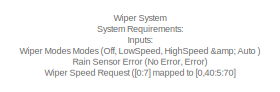
[diagram: root canvas - part 1/2, top left region]
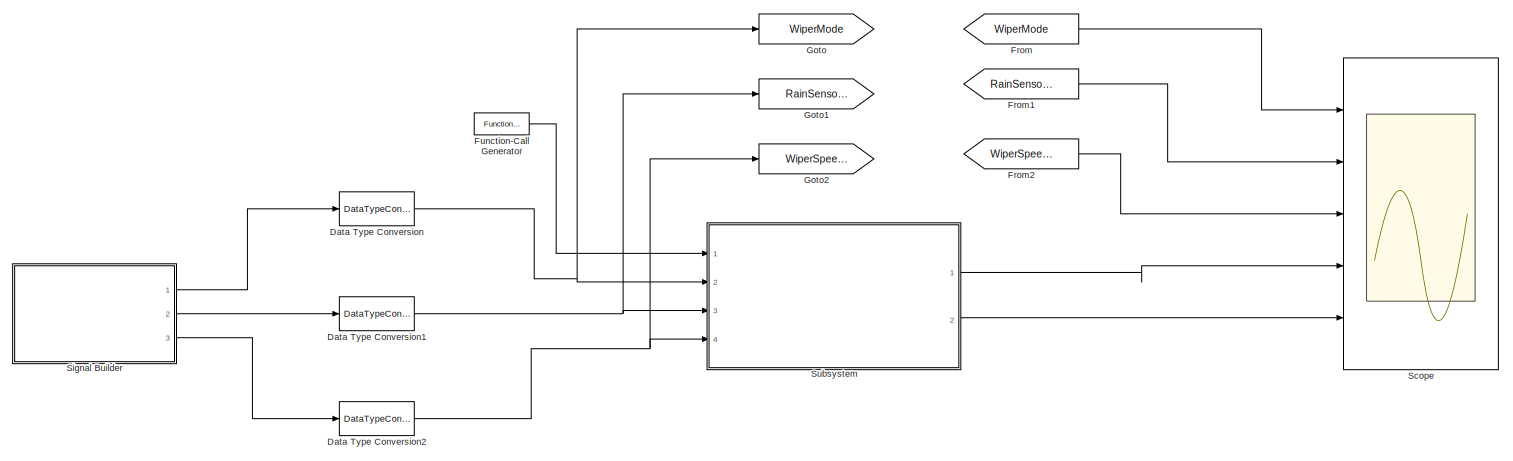
[diagram: root canvas - part 2/2, full width, bottom band]
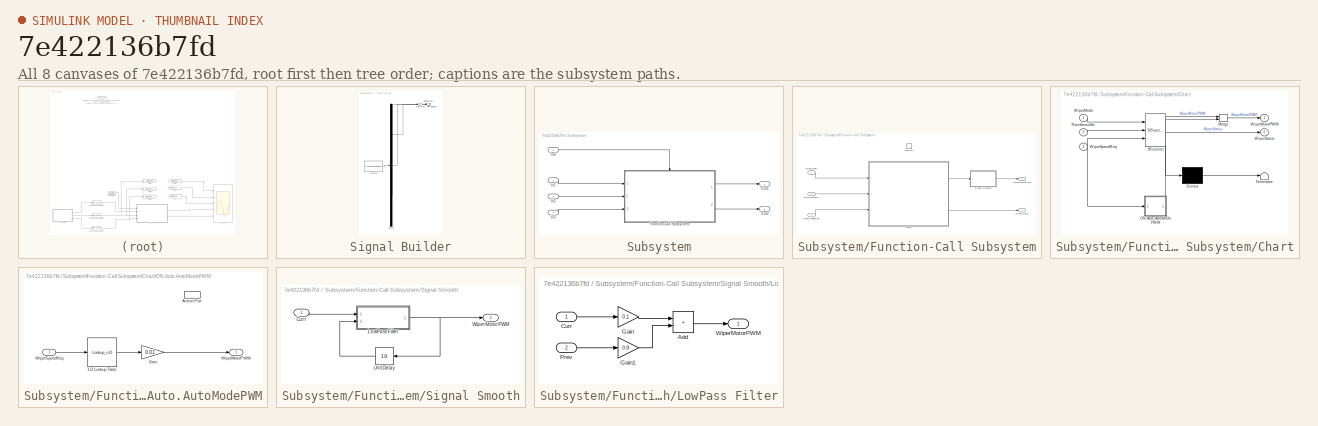
[diagram: thumbnail index - all 8 canvases of the model, root first then tree order]
MODEL slx_7e422136b7fd
KIND model
CONFIG AbsTol = auto
CONFIG EnableMultiTasking = off
CONFIG FixedStep = 0.01
CONFIG MaxStep = auto
CONFIG MinStep = auto
CONFIG RelTol = 1e-3
CONFIG SampleTimeConstraint = Unconstrained
CONFIG SolverName = FixedStepDiscrete
CONFIG StartTime = 0.0
CONFIG StopTime = 20
WORKSPACE source: mxarray member
WORKSPACE x_data: Simulink.Parameter (value not decoded)
WORKSPACE y_data: Simulink.Parameter (value not decoded)
BLOCK [DataTypeConversion] Data Type Conversion
  OutDataTypeStr = uint8
  OutMax = 3
  OutMin = 0
  RndMeth = Floor
  SaturateOnIntegerOverflow = off
BLOCK [DataTypeConversion] Data Type Conversion1
  OutDataTypeStr = boolean
  OutMax = 1
  OutMin = 0
  RndMeth = Floor
  SaturateOnIntegerOverflow = off
BLOCK [DataTypeConversion] Data Type Conversion2
  OutDataTypeStr = uint8
  OutMax = 7
  OutMin = 0
  RndMeth = Floor
  SaturateOnIntegerOverflow = off
BLOCK [From] From
  GotoTag = WiperMode
BLOCK [From] From1
  GotoTag = RainSensorErr
BLOCK [From] From2
  GotoTag = WiperSpeedReq
BLOCK [Reference] Function-Call Generator  REF=simulink/Ports &
Subsystems/Function-Call
Generator
  Ports = [0, 1]
  SourceBlock = simulink/Ports &\nSubsystems/Function-Call\nGenerator
  SourceProductBaseCode = SL
  SourceType = Function-Call Generator
BLOCK [Goto] Goto
  GotoTag = WiperMode
BLOCK [Goto] Goto1
  GotoTag = RainSensorErr
BLOCK [Goto] Goto2
  GotoTag = WiperSpeedReq
BLOCK [Scope] Scope
  Floating = off
  NumInputPorts = 5
  Ports = [5]
  ScopeSpecificationString = Simulink.scopes.TimeScopeBlockCfg('CurrentConfiguration', extmgr.ConfigurationSet(extmgr.Configuration('Core','General UI',true),extmgr.Configuration('Core','Source UI',true),extmgr.Configuration('Sources','WiredSimulink',true),extmgr.Configuration('Visuals','Time Domain',true,'SerializedDisplays',{struct('MinYLimReal','-0.375','MaxYLimReal','3.375','YLabelReal','','MinYLimMag','0.00000','MaxYLimM...<+4870ch>
BLOCK [SubSystem] Signal Builder
  ClipboardFcn = sigbuilder_block('clipboard');
  CloseFcn = sigbuilder_block('close');
  ContinueFcn = sigbuilder_block('continue');
  CopyFcn = sigbuilder_block('copy');
  DeleteFcn = sigbuilder_block('delete');
  LoadFcn = sigbuilder_block('load');
  MaskHideContents = on
  ModelCloseFcn = sigbuilder_block('modelClose');
  NameChangeFcn = sigbuilder_block('namechange');
  OpenFcn = sigbuilder_block('open',[428.4 165 601.8 400.2 ]);
  PauseFcn = sigbuilder_block('pause');
  Ports = [0, 3]
  PreSaveFcn = sigbuilder_block('preSave');
  RequestExecContextInheritance = off
  StartFcn = sigbuilder_block('start');
  StopFcn = sigbuilder_block('stop');
  Tag = STV Subsys
BLOCK [Demux] Signal Builder/Demux
  DisplayOption = none
  Outputs = 3
  Ports = [1, 3]
  Tag = STV Demux
BLOCK [FromWorkspace] Signal Builder/FromWs
  Tag = STV FromWs
  VariableName = tuvar
BLOCK [Outport] Signal Builder/RainSnsrErr
  Port = 2
  Tag = STV Outport
BLOCK [Outport] Signal Builder/WiprMod
  Tag = STV Outport
BLOCK [Outport] Signal Builder/WiprSpdReq
  Port = 3
  Tag = STV Outport
BLOCK [SubSystem] Subsystem
  Ports = [4, 2]
  RequestExecContextInheritance = off
BLOCK [SubSystem] Subsystem/Function-Call Subsystem
  Ports = [3, 2, 0, 1]
  RequestExecContextInheritance = off
  TreatAsAtomicUnit = on
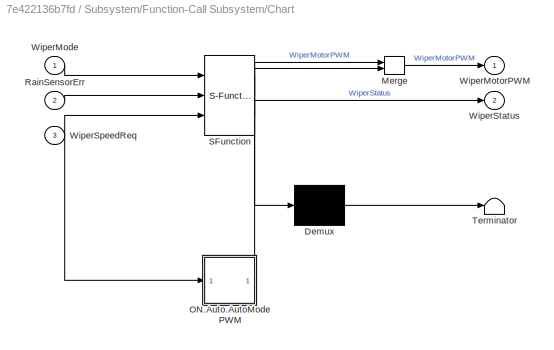
BLOCK [SubSystem] Subsystem/Function-Call Subsystem/Chart
  ErrorFcn = Stateflow.Translate.translate
  PermitHierarchicalResolution = ExplicitOnly
  Ports = [3, 2]
  RequestExecContextInheritance = off
  SFBlockType = Chart
  TreatAsAtomicUnit = on
BLOCK [Demux] Subsystem/Function-Call Subsystem/Chart/ Demux 
  Outputs = 1
  Ports = [1, 1]
BLOCK [Merge] Subsystem/Function-Call Subsystem/Chart/ Merge 
  Ports = [2, 1]
BLOCK [S-Function] Subsystem/Function-Call Subsystem/Chart/ SFunction 
  EnableBusSupport = on
  FunctionName = sf_sfun
  PortCounts = [3 3]
  Ports = [3, 3]
  SFcnIsStateOwnerBlock = off
  SFunctionDeploymentMode = off
  Tag = Stateflow S-Function 3
BLOCK [Terminator] Subsystem/Function-Call Subsystem/Chart/ Terminator 
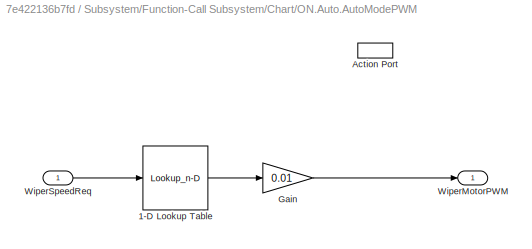
BLOCK [SubSystem] Subsystem/Function-Call Subsystem/Chart/ON.Auto.AutoModePWM
  Ports = [1, 1, 0, 0, 0, 0, 0, 1]
  PreDeleteFcn = Stateflow.SLINSF.SimulinkMan.removePreDeleteFcn
  RequestExecContextInheritance = off
  UndoDeleteFcn = Stateflow.SLINSF.SimulinkMan.restorePreDeleteFcn
BLOCK [Lookup_n-D] Subsystem/Function-Call Subsystem/Chart/ON.Auto.AutoModePWM/1-D Lookup Table
  BreakpointsForDimension1 = [0;1;2;3;4;5;6;7]
  ExtrapMethod = Clip
  InputPortMap = u0
  InternalRulePriority = Speed
  NumberOfTableDimensions = 1
  OutDataTypeStr = single
  Ports = [1, 1]
  RndMeth = Simplest
  Table = [0;40;45;50;55;60;65;70]
  TableDataTypeStr = single
BLOCK [ActionPort] Subsystem/Function-Call Subsystem/Chart/ON.Auto.AutoModePWM/Action Port
  CopyFcn = Stateflow.SLINSF.SimulinkMan.removeBlockPreDeleteFcn
  PreDeleteFcn = Stateflow.SLINSF.SimulinkMan.unsafePredeleteFcn
BLOCK [Gain] Subsystem/Function-Call Subsystem/Chart/ON.Auto.AutoModePWM/Gain
  Gain = 0.01
  OutDataTypeStr = Inherit: Inherit via back propagation
BLOCK [Outport] Subsystem/Function-Call Subsystem/Chart/ON.Auto.AutoModePWM/WiperMotorPWM
BLOCK [Inport] Subsystem/Function-Call Subsystem/Chart/ON.Auto.AutoModePWM/WiperSpeedReq
  OutDataTypeStr = uint8
BLOCK [Inport] Subsystem/Function-Call Subsystem/Chart/RainSensorErr
  Port = 2
BLOCK [Inport] Subsystem/Function-Call Subsystem/Chart/WiperMode
BLOCK [Outport] Subsystem/Function-Call Subsystem/Chart/WiperMotorPWM
BLOCK [Inport] Subsystem/Function-Call Subsystem/Chart/WiperSpeedReq
  Port = 3
BLOCK [Outport] Subsystem/Function-Call Subsystem/Chart/WiperStatus
  Port = 2
BLOCK [Inport] Subsystem/Function-Call Subsystem/RainSensorErr
  OutDataTypeStr = boolean
  OutMax = 1
  OutMin = 0
  Port = 2
BLOCK [SubSystem] Subsystem/Function-Call Subsystem/Signal Smooth
  Ports = [1, 1]
  RequestExecContextInheritance = off
BLOCK [Inport] Subsystem/Function-Call Subsystem/Signal Smooth/Curr
BLOCK [SubSystem] Subsystem/Function-Call Subsystem/Signal Smooth/LowPass Filter
  Ports = [2, 1]
  RequestExecContextInheritance = off
BLOCK [Sum] Subsystem/Function-Call Subsystem/Signal Smooth/LowPass Filter/Add
  IconShape = rectangular
  Ports = [2, 1]
BLOCK [Inport] Subsystem/Function-Call Subsystem/Signal Smooth/LowPass Filter/Curr
BLOCK [Gain] Subsystem/Function-Call Subsystem/Signal Smooth/LowPass Filter/Gain
  Gain = 0.1
BLOCK [Gain] Subsystem/Function-Call Subsystem/Signal Smooth/LowPass Filter/Gain1
  Gain = 0.9
BLOCK [Inport] Subsystem/Function-Call Subsystem/Signal Smooth/LowPass Filter/Prev
  Port = 2
BLOCK [Outport] Subsystem/Function-Call Subsystem/Signal Smooth/LowPass Filter/WiperMotorPWM
BLOCK [UnitDelay] Subsystem/Function-Call Subsystem/Signal Smooth/Unit Delay
  HasFrameUpgradeWarning = on
  NameLocation = top
  SampleTime = -1
BLOCK [Outport] Subsystem/Function-Call Subsystem/Signal Smooth/WiperMotorPWM
BLOCK [Inport] Subsystem/Function-Call Subsystem/WiperMode
  OutDataTypeStr = uint8
  OutMax = 3
  OutMin = 0
BLOCK [Outport] Subsystem/Function-Call Subsystem/WiperMotorPWM
  OutDataTypeStr = single
  OutMax = 1
  OutMin = 0
BLOCK [Inport] Subsystem/Function-Call Subsystem/WiperSpeedReq
  OutDataTypeStr = uint8
  OutMax = 7
  OutMin = 0
  Port = 3
BLOCK [Outport] Subsystem/Function-Call Subsystem/WiperStatus
  OutDataTypeStr = boolean
  OutMax = 1
  OutMin = 0
  Port = 2
BLOCK [TriggerPort] Subsystem/Function-Call Subsystem/function
  Ports = []
  StatesWhenEnabling = held
  TriggerType = function-call
  VariantControl = (inherit)
BLOCK [Inport] Subsystem/In1
  OutMax = 3
  OutMin = 0
  Port = 2
BLOCK [Inport] Subsystem/In2
  OutMax = 1
  OutMin = 0
  Port = 3
BLOCK [Inport] Subsystem/In3
  OutMax = 7
  OutMin = 0
  Port = 4
BLOCK [Inport] Subsystem/In4
BLOCK [Outport] Subsystem/Out1
  OutDataTypeStr = single
  OutMax = 1
  OutMin = 0
BLOCK [Outport] Subsystem/Out2
  OutDataTypeStr = boolean
  OutMax = 1
  OutMin = 0
  Port = 2
ANNOTATION (root): Wiper System System Requirements: Inputs: Wiper Modes Modes (Off, LowSpeed, HighSpeed & Auto ) Rain Sensor Error (No Error, Error) Wiper Speed Request ([0:7] mapped to [0,40:5:70] Output: Wiper Motor PWM Wiper Status System Behavior: - Component activates every 1 ms - If Wiper Mode is set to Low speed, Motor PWM is 40% - If Wiper Mode is set to High speed, Motor PWM is 70% - If Wiper Mode is set t...<+219ch>
NET Data Type Conversion1:1 -> Goto1:1, Subsystem:3
NET Data Type Conversion2:1 -> Goto2:1, Subsystem:4
NET Data Type Conversion:1 -> Goto:1, Subsystem:2
LINE From1:1 -> Scope:2
LINE From2:1 -> Scope:3
LINE From:1 -> Scope:1
LINE Function-Call Generator:1 -> Subsystem:1
LINE Signal Builder:1 -> Data Type Conversion:1
LINE Signal Builder:2 -> Data Type Conversion1:1
LINE Signal Builder:3 -> Data Type Conversion2:1
LINE Subsystem/Function-Call Subsystem/Chart:1 -> Subsystem/Function-Call Subsystem/Signal Smooth:1
LINE Subsystem/Function-Call Subsystem/Chart:2 -> Subsystem/Function-Call Subsystem/WiperStatus:1
LINE Subsystem/Function-Call Subsystem/RainSensorErr:1 -> Subsystem/Function-Call Subsystem/Chart:2
LINE Subsystem/Function-Call Subsystem/Signal Smooth/Curr:1 -> Subsystem/Function-Call Subsystem/Signal Smooth/LowPass Filter:1
LINE Subsystem/Function-Call Subsystem/Signal Smooth/LowPass Filter/Add:1 -> Subsystem/Function-Call Subsystem/Signal Smooth/LowPass Filter/WiperMotorPWM:1
LINE Subsystem/Function-Call Subsystem/Signal Smooth/LowPass Filter/Curr:1 -> Subsystem/Function-Call Subsystem/Signal Smooth/LowPass Filter/Gain:1
LINE Subsystem/Function-Call Subsystem/Signal Smooth/LowPass Filter/Gain1:1 -> Subsystem/Function-Call Subsystem/Signal Smooth/LowPass Filter/Add:2
LINE Subsystem/Function-Call Subsystem/Signal Smooth/LowPass Filter/Gain:1 -> Subsystem/Function-Call Subsystem/Signal Smooth/LowPass Filter/Add:1
LINE Subsystem/Function-Call Subsystem/Signal Smooth/LowPass Filter/Prev:1 -> Subsystem/Function-Call Subsystem/Signal Smooth/LowPass Filter/Gain1:1
NET Subsystem/Function-Call Subsystem/Signal Smooth/LowPass Filter:1 -> Subsystem/Function-Call Subsystem/Signal Smooth/Unit Delay:1, Subsystem/Function-Call Subsystem/Signal Smooth/WiperMotorPWM:1
LINE Subsystem/Function-Call Subsystem/Signal Smooth/Unit Delay:1 -> Subsystem/Function-Call Subsystem/Signal Smooth/LowPass Filter:2
LINE Subsystem/Function-Call Subsystem/Signal Smooth:1 -> Subsystem/Function-Call Subsystem/WiperMotorPWM:1
LINE Subsystem/Function-Call Subsystem/WiperMode:1 -> Subsystem/Function-Call Subsystem/Chart:1
LINE Subsystem/Function-Call Subsystem/WiperSpeedReq:1 -> Subsystem/Function-Call Subsystem/Chart:3
LINE Subsystem/Function-Call Subsystem:1 -> Subsystem/Out1:1
LINE Subsystem/Function-Call Subsystem:2 -> Subsystem/Out2:1
LINE Subsystem/In1:1 -> Subsystem/Function-Call Subsystem:1
LINE Subsystem/In2:1 -> Subsystem/Function-Call Subsystem:2
LINE Subsystem/In3:1 -> Subsystem/Function-Call Subsystem:3
LINE Subsystem/In4:1 -> Subsystem/Function-Call Subsystem:trigger
LINE Subsystem:1 -> Scope:4
LINE Subsystem:2 -> Scope:5
note: NET lines group one-source signal fan-out (src -> all destinations, sorted); 1:1 wires keep LINE
CHART Subsystem/Function-Call
Subsystem/Chart states=6 transitions=16
  STATE_LABEL 'ON\n'
  STATE_LABEL 'Auto\nduring:\nWiperStatus = true;'
  STATE_LABEL 'AutoModePWM'
  STATE_LABEL 'LoSpeed\nentry:\nWiperStatus = true;\nWiperMotorPWM = 0.4;\n'
  STATE_LABEL 'HiSpeed\nentry:\nWiperStatus = true;\nWiperMotorPWM = 0.7;'
  STATE_LABEL '[WiperMode == 1]'
  STATE_LABEL '[WiperMode == 2]'
  STATE_LABEL '[WiperMode == 3]'
  STATE_LABEL '[WiperMode==1]'
  STATE_LABEL '[WiperMode == 3]'
  STATE_LABEL '[WiperMode == 3]'
  STATE_LABEL '[WiperMode == 2]'
  STATE_LABEL '[WiperMode == 2]'
  STATE_LABEL 'Auto\nduring:\nWiperStatus = true;'
  STATE_LABEL 'AutoModePWM'
  STATE_LABEL 'AutoModePWM'
  STATE_LABEL 'LoSpeed\nentry:\nWiperStatus = true;\nWiperMotorPWM = 0.4;\n'
  STATE_LABEL 'HiSpeed\nentry:\nWiperStatus = true;\nWiperMotorPWM = 0.7;'
  STATE_LABEL 'OFF\nentry:\nWiperMotorPWM = 0;\nWiperStatus = false;\n'
CHART  states=0 transitions=0
